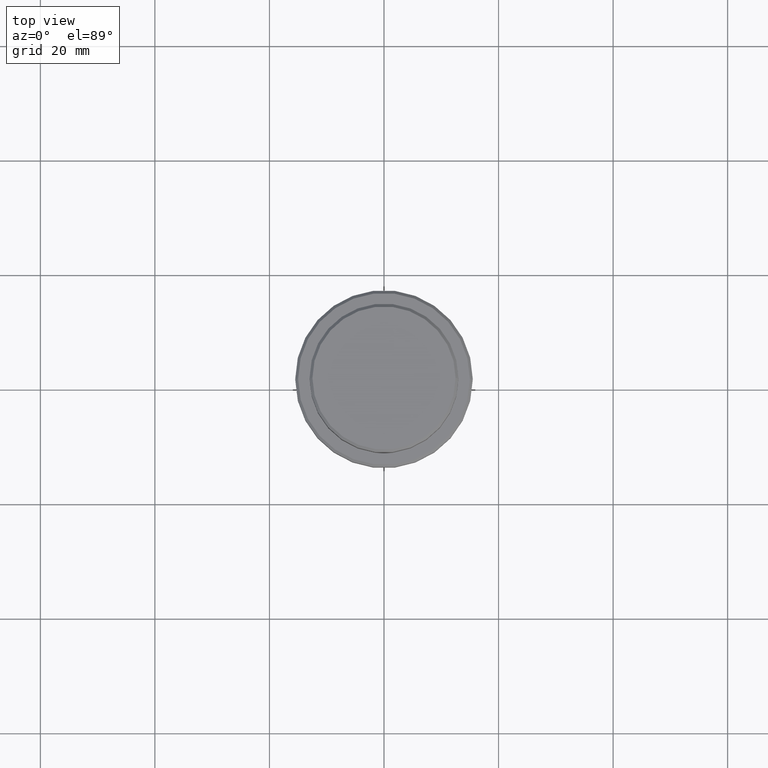
[diagram: clean part render]
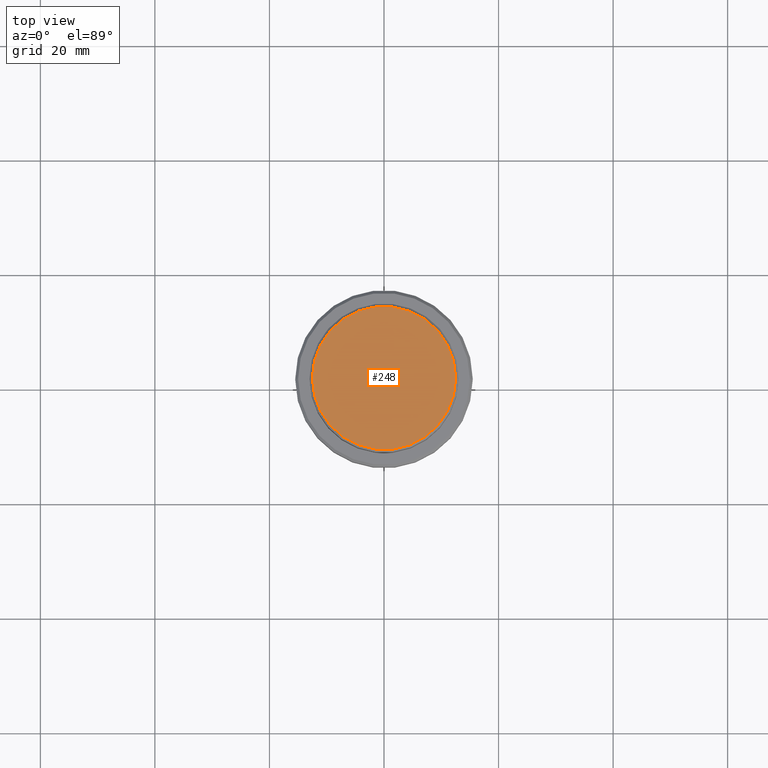
[diagram: same view with one face highlighted and labeled with its STEP entity id]
A machine part, top view. The second image highlights one B-rep face of the part: STEP entity #248.
In plain terms, the highlighted planar face has unit normal (0, -0, 1).
Its self-contained STEP definition (entity closure, byte-faithful):
#24 = PLANE ( 'NONE',  #263 ) ;
#61 = CARTESIAN_POINT ( 'NONE',  ( 0.000000000000000000, 0.000000000000000000, 0.000000000000000000 ) ) ;
#140 = CARTESIAN_POINT ( 'NONE',  ( -12.49999999999997158, 0.000000000000000000, 0.000000000000000000 ) ) ;
#248 = ADVANCED_FACE ( 'NONE', ( #451 ), #24, .T. ) ;
#263 = AXIS2_PLACEMENT_3D ( 'NONE', #1337, #785, #1224 ) ;
#306 = VERTEX_POINT ( 'NONE', #140 ) ;
#327 = CARTESIAN_POINT ( 'NONE',  ( 0.000000000000000000, 0.000000000000000000, 0.000000000000000000 ) ) ;
#336 = CIRCLE ( 'NONE', #586, 12.49999999999997158 ) ;
#340 = AXIS2_PLACEMENT_3D ( 'NONE', #327, #1397, #859 ) ;
#451 = FACE_OUTER_BOUND ( 'NONE', #1081, .T. ) ;
#552 = VERTEX_POINT ( 'NONE', #638 ) ;
#586 = AXIS2_PLACEMENT_3D ( 'NONE', #61, #1145, #692 ) ;
#638 = CARTESIAN_POINT ( 'NONE',  ( 12.49999999999997158, 1.561424668912873336E-15, 0.000000000000000000 ) ) ;
#692 = DIRECTION ( 'NONE',  ( 1.000000000000000000, 0.000000000000000000, 0.000000000000000000 ) ) ;
#745 = EDGE_CURVE ( 'NONE', #306, #552, #336, .T. ) ;
#785 = DIRECTION ( 'NONE',  ( 0.000000000000000000, -0.000000000000000000, 1.000000000000000000 ) ) ;
#859 = DIRECTION ( 'NONE',  ( 1.000000000000000000, 0.000000000000000000, 0.000000000000000000 ) ) ;
#995 = ORIENTED_EDGE ( 'NONE', *, *, #745, .T. ) ;
#1081 = EDGE_LOOP ( 'NONE', ( #995, #1087 ) ) ;
#1087 = ORIENTED_EDGE ( 'NONE', *, *, #1336, .T. ) ;
#1145 = DIRECTION ( 'NONE',  ( -0.000000000000000000, -0.000000000000000000, 1.000000000000000000 ) ) ;
#1224 = DIRECTION ( 'NONE',  ( 1.000000000000000000, 0.000000000000000000, 0.000000000000000000 ) ) ;
#1238 = CIRCLE ( 'NONE', #340, 12.49999999999997158 ) ;
#1336 = EDGE_CURVE ( 'NONE', #552, #306, #1238, .T. ) ;
#1337 = CARTESIAN_POINT ( 'NONE',  ( 0.000000000000000000, 0.000000000000000000, 0.000000000000000000 ) ) ;
#1397 = DIRECTION ( 'NONE',  ( -0.000000000000000000, -0.000000000000000000, 1.000000000000000000 ) ) ;